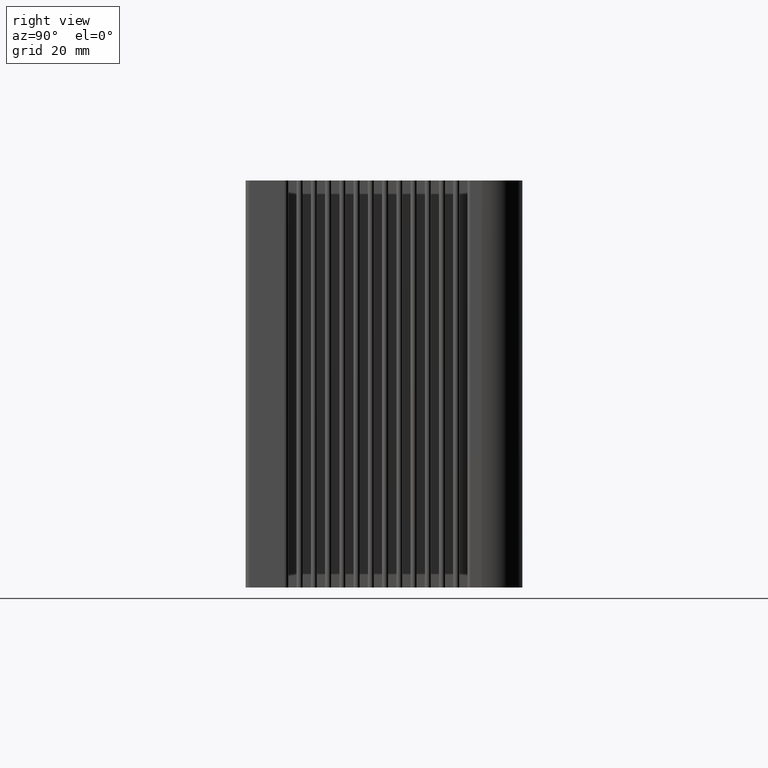
[diagram: clean part render]
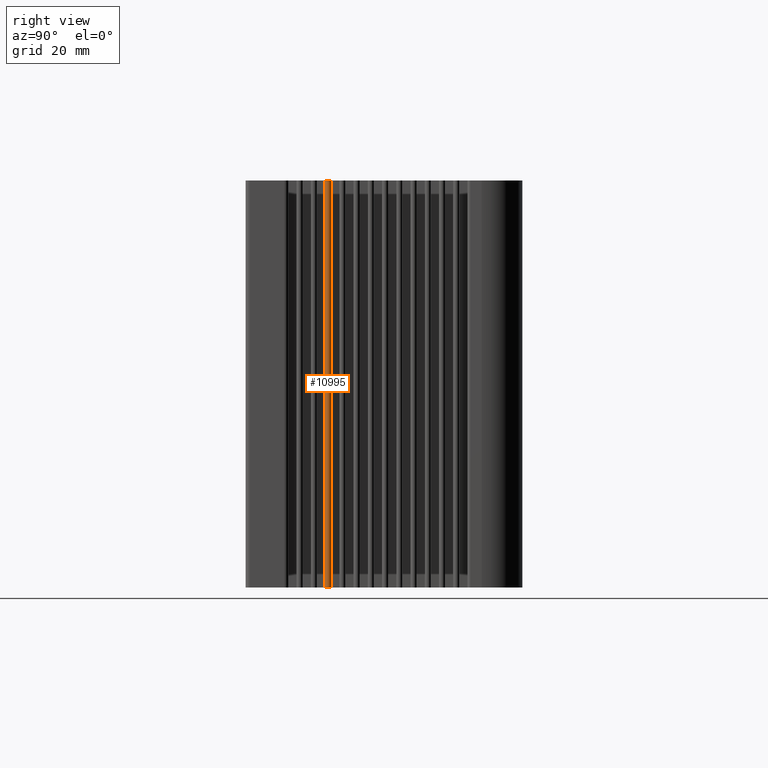
[diagram: same view with one face highlighted and labeled with its STEP entity id]
A machine part, right view. The second image highlights one B-rep face of the part: STEP entity #10995.
In plain terms, the highlighted cylindrical surface (edge-blend (fillet) strip) has radius 0.75 mm, axis along (-0, -0, -1).
Its self-contained STEP definition (entity closure, byte-faithful):
#115 = VERTEX_POINT ( 'NONE', #473 ) ;
#473 = CARTESIAN_POINT ( 'NONE',  ( 83.72052464119741444, -46.49140371444924824, 50.00000000000000000 ) ) ;
#945 = DIRECTION ( 'NONE',  ( 1.000000000000000000, 0.0000000000000000000, 0.0000000000000000000 ) ) ;
#1032 = CARTESIAN_POINT ( 'NONE',  ( 83.72052464119741444, -47.99140371444924824, -50.00000000000000000 ) ) ;
#1045 = EDGE_LOOP ( 'NONE', ( #13040, #6749, #2440, #8405 ) ) ;
#1050 = DIRECTION ( 'NONE',  ( -0.0000000000000000000, -0.0000000000000000000, -1.000000000000000000 ) ) ;
#2338 = DIRECTION ( 'NONE',  ( -0.0000000000000000000, -0.0000000000000000000, -1.000000000000000000 ) ) ;
#2440 = ORIENTED_EDGE ( 'NONE', *, *, #3335, .F. ) ;
#2448 = DIRECTION ( 'NONE',  ( 0.0000000000000000000, 0.0000000000000000000, 1.000000000000000000 ) ) ;
#2940 = CARTESIAN_POINT ( 'NONE',  ( 83.72052464119741444, -46.49140371444924824, -50.00000000000000000 ) ) ;
#3038 = DIRECTION ( 'NONE',  ( 0.0000000000000000000, 0.0000000000000000000, 1.000000000000000000 ) ) ;
#3335 = EDGE_CURVE ( 'NONE', #9851, #115, #7859, .T. ) ;
#3838 = VERTEX_POINT ( 'NONE', #2940 ) ;
#4466 = CYLINDRICAL_SURFACE ( 'NONE', #8864, 0.7500000000000006661 ) ;
#4754 = EDGE_CURVE ( 'NONE', #9851, #10291, #4882, .T. ) ;
#4798 = LINE ( 'NONE', #7376, #12893 ) ;
#4882 = LINE ( 'NONE', #9075, #7007 ) ;
#5173 = EDGE_CURVE ( 'NONE', #10291, #3838, #7331, .T. ) ;
#5567 = DIRECTION ( 'NONE',  ( -1.000000000000000000, 0.0000000000000000000, 0.0000000000000000000 ) ) ;
#6749 = ORIENTED_EDGE ( 'NONE', *, *, #11379, .F. ) ;
#7007 = VECTOR ( 'NONE', #12282, 1000.000000000000000 ) ;
#7331 = CIRCLE ( 'NONE', #10416, 0.7500000000000006661 ) ;
#7376 = CARTESIAN_POINT ( 'NONE',  ( 83.72052464119741444, -46.49140371444924824, 50.00000000000000000 ) ) ;
#7859 = CIRCLE ( 'NONE', #12492, 0.7500000000000006661 ) ;
#8003 = CARTESIAN_POINT ( 'NONE',  ( 83.72052464119741444, -47.99140371444924824, 50.00000000000000000 ) ) ;
#8405 = ORIENTED_EDGE ( 'NONE', *, *, #4754, .T. ) ;
#8770 = CARTESIAN_POINT ( 'NONE',  ( 83.72052464119741444, -47.24140371444924824, -50.00000000000000000 ) ) ;
#8864 = AXIS2_PLACEMENT_3D ( 'NONE', #11926, #2338, #5567 ) ;
#9075 = CARTESIAN_POINT ( 'NONE',  ( 83.72052464119741444, -47.99140371444924824, 50.00000000000000000 ) ) ;
#9851 = VERTEX_POINT ( 'NONE', #8003 ) ;
#9863 = DIRECTION ( 'NONE',  ( 1.000000000000000000, 0.0000000000000000000, 0.0000000000000000000 ) ) ;
#10126 = FACE_OUTER_BOUND ( 'NONE', #1045, .T. ) ;
#10271 = CARTESIAN_POINT ( 'NONE',  ( 83.72052464119741444, -47.24140371444924824, 50.00000000000000000 ) ) ;
#10291 = VERTEX_POINT ( 'NONE', #1032 ) ;
#10416 = AXIS2_PLACEMENT_3D ( 'NONE', #8770, #2448, #9863 ) ;
#10995 = ADVANCED_FACE ( 'NONE', ( #10126 ), #4466, .T. ) ;
#11379 = EDGE_CURVE ( 'NONE', #115, #3838, #4798, .T. ) ;
#11926 = CARTESIAN_POINT ( 'NONE',  ( 83.72052464119741444, -47.24140371444924824, 50.00000000000000000 ) ) ;
#12282 = DIRECTION ( 'NONE',  ( -0.0000000000000000000, -0.0000000000000000000, -1.000000000000000000 ) ) ;
#12492 = AXIS2_PLACEMENT_3D ( 'NONE', #10271, #3038, #945 ) ;
#12893 = VECTOR ( 'NONE', #1050, 1000.000000000000000 ) ;
#13040 = ORIENTED_EDGE ( 'NONE', *, *, #5173, .T. ) ;